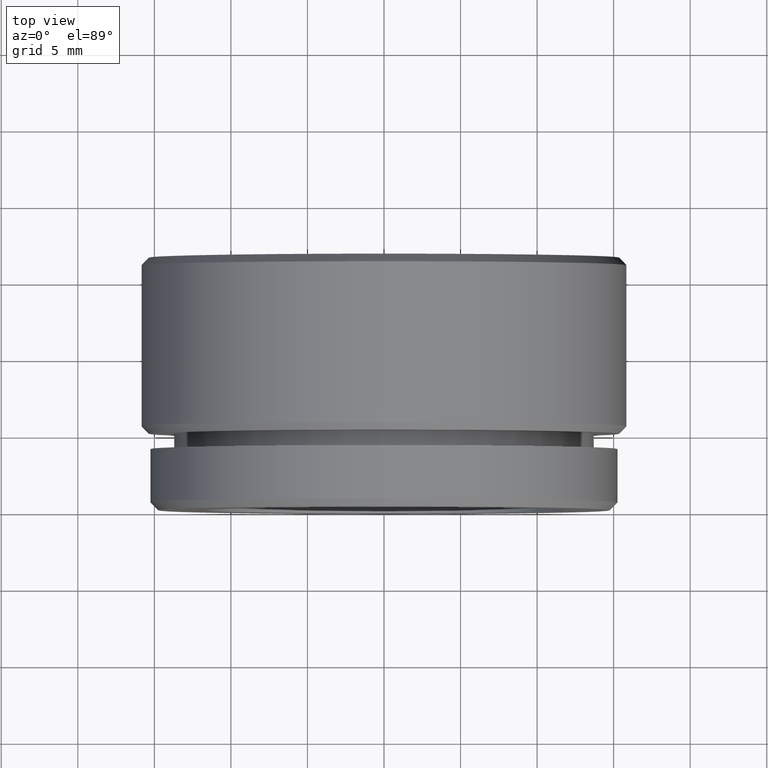
[diagram: clean part render]
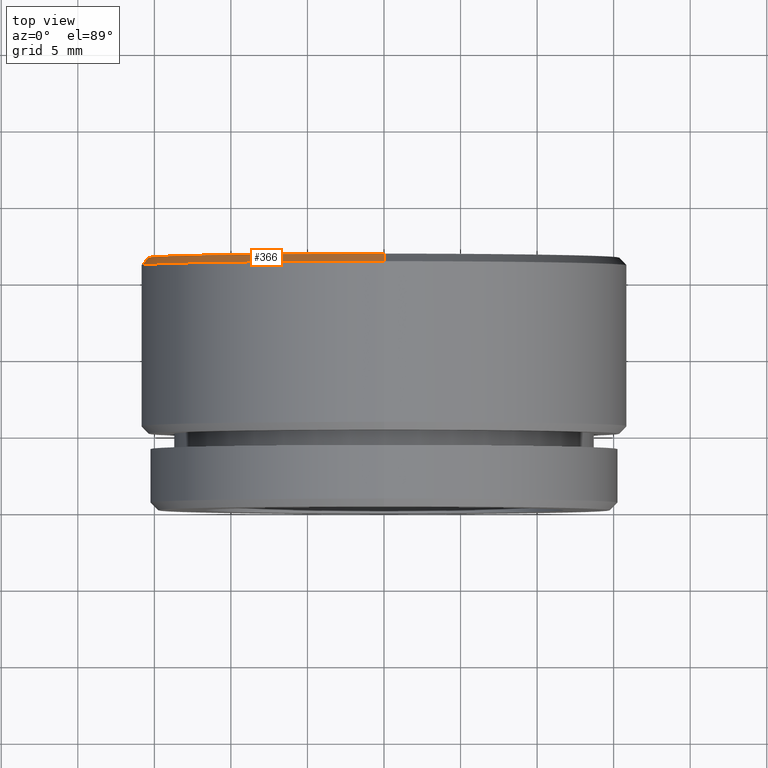
[diagram: same view with one face highlighted and labeled with its STEP entity id]
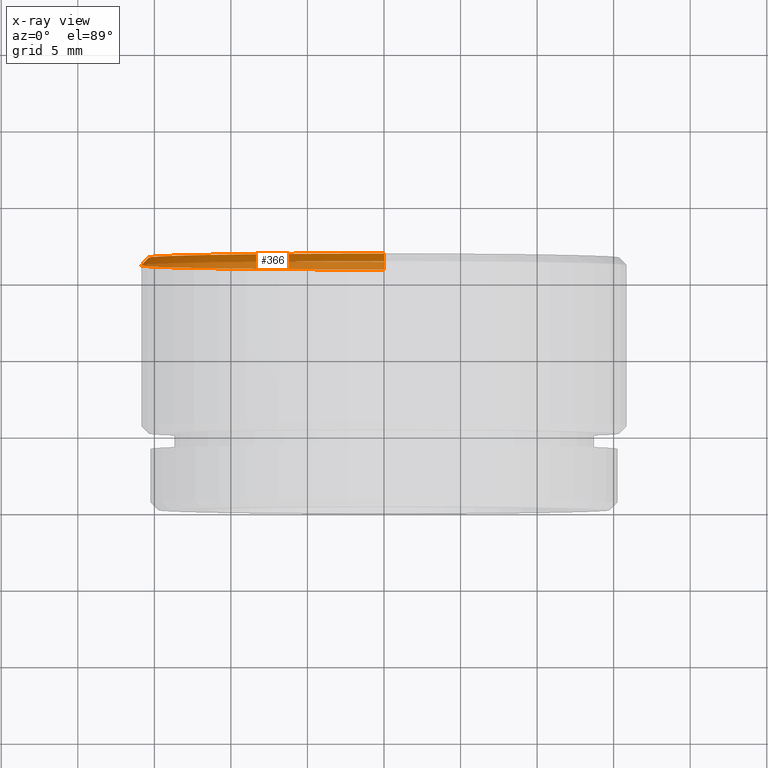
[diagram: x-ray of the same camera — body ghosted, the highlighted face saturated]
A machine part, top view. The second image highlights one B-rep face of the part: STEP entity #366.
The next image is the same camera in x-ray: the body ghosted, the highlighted face saturated — about 47% of this face is hidden behind the body in this view.
In plain terms, the highlighted conical surface has half-angle 45 deg.
Its self-contained STEP definition (entity closure, byte-faithful):
#7 = DIRECTION ( 'NONE',  ( 0.0000000000000000000, 1.000000000000000000, 0.0000000000000000000 ) ) ;
#11 = DIRECTION ( 'NONE',  ( 0.0000000000000000000, 0.0000000000000000000, 1.000000000000000000 ) ) ;
#43 = ORIENTED_EDGE ( 'NONE', *, *, #639, .T. ) ;
#46 = VERTEX_POINT ( 'NONE', #857 ) ;
#74 = CARTESIAN_POINT ( 'NONE',  ( 1.913510623667739100E-015, 16.50000000000000000, 15.37499999999999600 ) ) ;
#82 = DIRECTION ( 'NONE',  ( -0.0000000000000000000, -1.000000000000000000, -0.0000000000000000000 ) ) ;
#83 = CARTESIAN_POINT ( 'NONE',  ( 0.0000000000000000000, 15.99999999999999600, 0.0000000000000000000 ) ) ;
#85 = DIRECTION ( 'NONE',  ( 0.0000000000000000000, 0.0000000000000000000, -1.000000000000000000 ) ) ;
#93 = CARTESIAN_POINT ( 'NONE',  ( 1.944126793646423200E-015, 15.99999999999999600, 15.87500000000000000 ) ) ;
#158 = EDGE_CURVE ( 'NONE', #46, #577, #421, .T. ) ;
#191 = VERTEX_POINT ( 'NONE', #740 ) ;
#317 = DIRECTION ( 'NONE',  ( 0.0000000000000000000, -0.7071067811865474600, -0.7071067811865474600 ) ) ;
#366 = ADVANCED_FACE ( 'NONE', ( #751 ), #501, .T. ) ;
#387 = DIRECTION ( 'NONE',  ( -0.0000000000000000000, -1.000000000000000000, -0.0000000000000000000 ) ) ;
#402 = CIRCLE ( 'NONE', #859, 15.37499999999999600 ) ;
#421 = CIRCLE ( 'NONE', #568, 15.87500000000000000 ) ;
#445 = CARTESIAN_POINT ( 'NONE',  ( 0.0000000000000000000, 15.99999999999999600, -15.87500000000000000 ) ) ;
#452 = EDGE_CURVE ( 'NONE', #870, #46, #611, .T. ) ;
#453 = CARTESIAN_POINT ( 'NONE',  ( 0.0000000000000000000, 16.50000000000000000, 0.0000000000000000000 ) ) ;
#469 = EDGE_CURVE ( 'NONE', #191, #870, #402, .T. ) ;
#477 = VECTOR ( 'NONE', #317, 1000.000000000000100 ) ;
#501 = CONICAL_SURFACE ( 'NONE', #747, 15.87500000000000000, 0.7853981633974482800 ) ;
#506 = ORIENTED_EDGE ( 'NONE', *, *, #452, .F. ) ;
#511 = VECTOR ( 'NONE', #739, 1000.000000000000100 ) ;
#527 = CARTESIAN_POINT ( 'NONE',  ( 0.0000000000000000000, 15.99999999999999600, 0.0000000000000000000 ) ) ;
#539 = DIRECTION ( 'NONE',  ( 0.0000000000000000000, 0.0000000000000000000, 1.000000000000000000 ) ) ;
#568 = AXIS2_PLACEMENT_3D ( 'NONE', #527, #387, #539 ) ;
#577 = VERTEX_POINT ( 'NONE', #445 ) ;
#611 = LINE ( 'NONE', #93, #511 ) ;
#639 = EDGE_CURVE ( 'NONE', #191, #577, #697, .T. ) ;
#654 = ORIENTED_EDGE ( 'NONE', *, *, #158, .F. ) ;
#677 = EDGE_LOOP ( 'NONE', ( #506, #855, #43, #654 ) ) ;
#697 = LINE ( 'NONE', #748, #477 ) ;
#739 = DIRECTION ( 'NONE',  ( 8.659560562354932900E-017, -0.7071067811865474600, 0.7071067811865474600 ) ) ;
#740 = CARTESIAN_POINT ( 'NONE',  ( 0.0000000000000000000, 16.50000000000000000, -15.37499999999999600 ) ) ;
#747 = AXIS2_PLACEMENT_3D ( 'NONE', #83, #82, #85 ) ;
#748 = CARTESIAN_POINT ( 'NONE',  ( 0.0000000000000000000, 15.99999999999999600, -15.87500000000000000 ) ) ;
#751 = FACE_OUTER_BOUND ( 'NONE', #677, .T. ) ;
#855 = ORIENTED_EDGE ( 'NONE', *, *, #469, .F. ) ;
#857 = CARTESIAN_POINT ( 'NONE',  ( 1.944126793646423200E-015, 15.99999999999999600, 15.87500000000000000 ) ) ;
#859 = AXIS2_PLACEMENT_3D ( 'NONE', #453, #7, #11 ) ;
#870 = VERTEX_POINT ( 'NONE', #74 ) ;